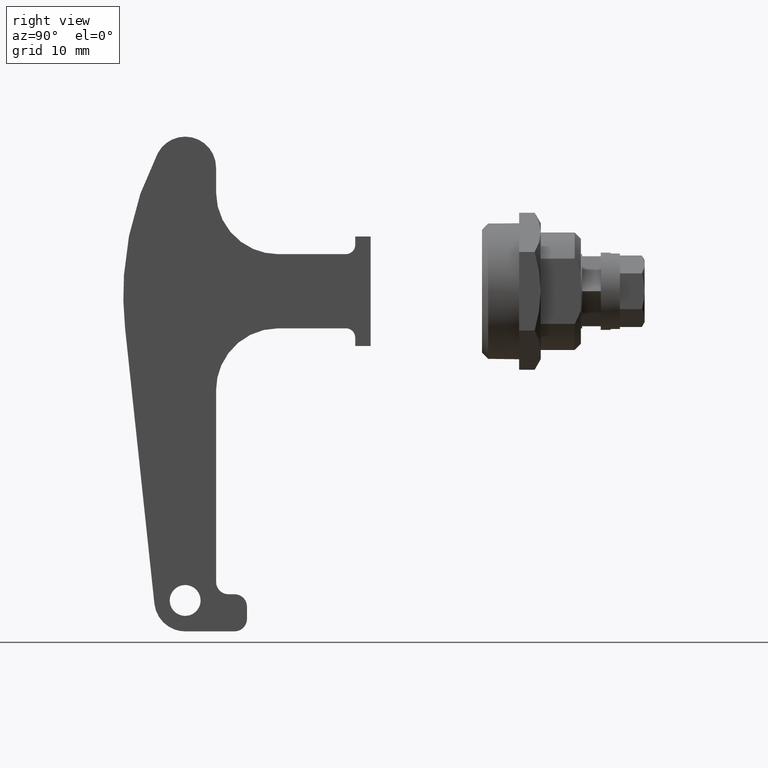
[diagram: clean part render]
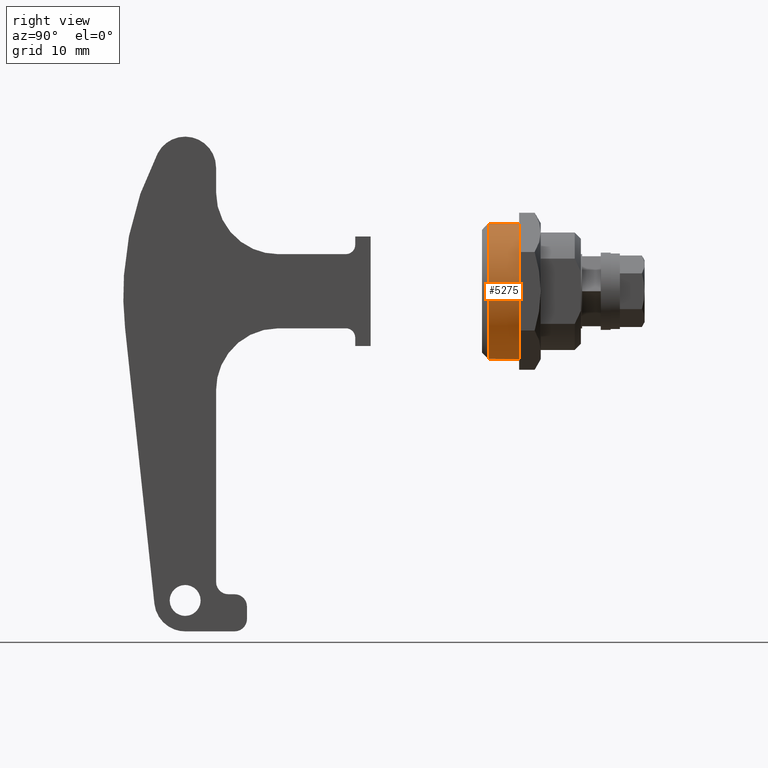
[diagram: same view with one face highlighted and labeled with its STEP entity id]
A machine part, right view. The second image highlights one B-rep face of the part: STEP entity #5275.
In plain terms, the highlighted face is a freeform B-spline surface patch.
Its self-contained STEP definition (entity closure, byte-faithful):
#5088=CARTESIAN_POINT('',(-8.050060152863390,0.125000000000000,-7.496434588207982));
#5089=CARTESIAN_POINT('',(-7.835515415635006,0.125000000000000,-7.726823851243171));
#5090=CARTESIAN_POINT('',(-7.608145358439399,0.125000000000000,-7.944565702721383));
#5091=CARTESIAN_POINT('',(0.336420344281985,0.125000000000000,-15.552711061160776));
#5092=CARTESIAN_POINT('',(7.944565702721384,0.125000000000000,-7.608145358439399));
#5093=CARTESIAN_POINT('',(15.552711061160789,0.125000000000000,0.336420344281985));
#5094=CARTESIAN_POINT('',(7.608145358439399,0.125000000000000,7.944565702721385));
#5095=CARTESIAN_POINT('',(-0.336420344281985,0.125000000000000,15.552711061160789));
#5096=CARTESIAN_POINT('',(-7.944565702721384,0.125000000000000,7.608145358439400));
#5097=CARTESIAN_POINT('',(-8.050060152863390,-5.128125000000010,-7.496434588207982));
#5098=CARTESIAN_POINT('',(-7.835515415635006,-5.128125000000009,-7.726823851243171));
#5099=CARTESIAN_POINT('',(-7.608145358439399,-5.128125000000009,-7.944565702721383));
#5100=CARTESIAN_POINT('',(0.336420344281985,-5.128125000000008,-15.552711061160776));
#5101=CARTESIAN_POINT('',(7.944565702721384,-5.128125000000009,-7.608145358439399));
#5102=CARTESIAN_POINT('',(15.552711061160789,-5.128125000000008,0.336420344281985));
#5103=CARTESIAN_POINT('',(7.608145358439399,-5.128125000000009,7.944565702721385));
#5104=CARTESIAN_POINT('',(-0.336420344281985,-5.128125000000008,15.552711061160789));
#5105=CARTESIAN_POINT('',(-7.944565702721384,-5.128125000000009,7.608145358439400));
#5113=(BOUNDED_SURFACE()B_SPLINE_SURFACE(2,1,((#5088,#5097),(#5089,#5098),(#5090,#5099),(#5091,#5100),(#5092,#5101),(#5093,#5102),(#5094,#5103),(#5095,#5104),(#5096,#5105)),.UNSPECIFIED.,.F.,.F.,.U.)B_SPLINE_SURFACE_WITH_KNOTS((3,2,2,2,3),(2,2),(0.0,0.729015869776648,18.954412614192819,37.179809358608992,55.405206103025172),(0.0,5.253125000000011),.UNSPECIFIED.)GEOMETRIC_REPRESENTATION_ITEM()RATIONAL_B_SPLINE_SURFACE(((0.977505800795127,0.977505800795127),(0.988284271247462,0.988284271247462),(1.0,1.0),(0.707106781186548,0.707106781186548),(1.0,1.0),(0.707106781186548,0.707106781186548),(1.0,1.0),(0.707106781186548,0.707106781186548),(1.0,1.0)))REPRESENTATION_ITEM('')SURFACE());
#5114=CARTESIAN_POINT('',(-8.050060190203183,-5.000000000022905,-7.496434548110553));
#5115=VERTEX_POINT('',#5114);
#5116=CARTESIAN_POINT('',(-1.099999999999910,-5.0,-10.944861808172719));
#5117=VERTEX_POINT('',#5116);
#5118=CARTESIAN_POINT('',(-8.050060190203183,-5.000000000022905,-7.496434548110553));
#5119=CARTESIAN_POINT('',(-7.431068792649693,-5.000000000020772,-8.161545459059530));
#5120=CARTESIAN_POINT('',(-6.441712919248031,-5.000000000017367,-8.989403467750481));
#5121=CARTESIAN_POINT('',(-4.757567595969736,-5.000000000011800,-9.959356095032685));
#5122=CARTESIAN_POINT('',(-3.141394728457838,-5.000000000006512,-10.608125318505151));
#5123=CARTESIAN_POINT('',(-1.798550086623624,-5.000000000002228,-10.874739209553541));
#5124=CARTESIAN_POINT('',(-1.099999999999910,-5.0,-10.944861808172719));
#5125=B_SPLINE_CURVE_WITH_KNOTS('',3,(#5118,#5119,#5120,#5121,#5122,#5123,#5124),.UNSPECIFIED.,.F.,.U.,(4,1,1,1,4),(0.000000050398091,2.725653716062167,3.840709097811026,5.822956633245214,7.929135200690999),.UNSPECIFIED.);
#5126=EDGE_CURVE('',#5115,#5117,#5125,.T.);
#5127=ORIENTED_EDGE('',*,*,#5126,.F.);
#5128=CARTESIAN_POINT('',(-8.050060710990881,-1.135771E-016,-7.496434914028669));
#5129=VERTEX_POINT('',#5128);
#5130=CARTESIAN_POINT('',(-8.050060710990881,-1.135771E-016,-7.496434914028669));
#5131=CARTESIAN_POINT('',(-8.050060190203183,-5.000000000022905,-7.496434548110553));
#5132=QUASI_UNIFORM_CURVE('',1,(#5130,#5131),.UNSPECIFIED.,.F.,.U.);
#5133=EDGE_CURVE('',#5129,#5115,#5132,.T.);
#5134=ORIENTED_EDGE('',*,*,#5133,.F.);
#5135=CARTESIAN_POINT('',(0.0,0.0,-11.0));
#5136=VERTEX_POINT('',#5135);
#5137=CARTESIAN_POINT('',(-8.050060710990881,-1.135771E-016,-7.496434914028669));
#5138=CARTESIAN_POINT('',(-7.217132751390635,-1.018255E-016,-8.392055392923817));
#5139=CARTESIAN_POINT('',(-5.664789285376281,-7.992368E-017,-9.580814811851642));
#5140=CARTESIAN_POINT('',(-2.868937220390182,-4.047742E-017,-10.734040182439919));
#5141=CARTESIAN_POINT('',(-1.081898195165848,-1.526434E-017,-11.000514299352311));
#5142=CARTESIAN_POINT('',(0.0,0.0,-11.0));
#5143=B_SPLINE_CURVE_WITH_KNOTS('',3,(#5137,#5138,#5139,#5140,#5141,#5142),.UNSPECIFIED.,.F.,.U.,(4,1,1,4),(0.000000074153428,3.668856991370187,5.785469227497000,9.030997189439178),.UNSPECIFIED.);
#5144=EDGE_CURVE('',#5129,#5136,#5143,.T.);
#5145=ORIENTED_EDGE('',*,*,#5144,.T.);
#5146=CARTESIAN_POINT('',(10.999999999999710,0.0,0.000002528387895));
#5147=VERTEX_POINT('',#5146);
#5148=CARTESIAN_POINT('',(0.0,0.0,-11.0));
#5149=CARTESIAN_POINT('',(0.719934548192658,0.0,-11.000076660029301));
#5150=CARTESIAN_POINT('',(2.204818686804422,0.0,-10.853761494314369));
#5151=CARTESIAN_POINT('',(4.192587145909348,0.0,-10.237442836888460));
#5152=CARTESIAN_POINT('',(5.989861772342139,0.0,-9.290810170775215));
#5153=CARTESIAN_POINT('',(7.743937777512471,0.0,-7.939504238255586));
#5154=CARTESIAN_POINT('',(9.309796292870567,0.0,-6.055160440763586));
#5155=CARTESIAN_POINT('',(10.640219894140049,0.0,-3.329192093082455));
#5156=CARTESIAN_POINT('',(11.000950133426359,0.0,-1.260051732180000));
#5157=CARTESIAN_POINT('',(10.999999999999710,0.0,0.000002528387895));
#5158=B_SPLINE_CURVE_WITH_KNOTS('',3,(#5148,#5149,#5150,#5151,#5152,#5153,#5154,#5155,#5156,#5157),.UNSPECIFIED.,.F.,.U.,(4,1,1,1,1,1,1,4),(0.000000259184517,2.159811374421086,4.454711537620927,6.209605637399960,8.234467055169128,11.069260910879979,13.499128418174431,17.278869436697779),.UNSPECIFIED.);
#5159=EDGE_CURVE('',#5136,#5147,#5158,.T.);
#5160=ORIENTED_EDGE('',*,*,#5159,.T.);
#5161=CARTESIAN_POINT('',(0.0,0.0,11.0));
#5162=VERTEX_POINT('',#5161);
#5163=CARTESIAN_POINT('',(10.999999999999710,0.0,0.000002528387895));
#5164=CARTESIAN_POINT('',(11.000074845109300,0.0,0.719939197845157));
#5165=CARTESIAN_POINT('',(10.862570917530100,0.0,2.114800007220882));
#5166=CARTESIAN_POINT('',(10.220113717569641,0.0,4.280968366204728));
#5167=CARTESIAN_POINT('',(9.248082060196683,0.0,6.072949218689391));
#5168=CARTESIAN_POINT('',(7.970111322412397,0.0,7.649546195058949));
#5169=CARTESIAN_POINT('',(6.455204941348013,0.0,9.005989990398792));
#5170=CARTESIAN_POINT('',(4.530487394014768,0.0,10.111982536879539));
#5171=CARTESIAN_POINT('',(2.294763774377204,0.0,10.835212227545670));
#5172=CARTESIAN_POINT('',(0.809951545803428,0.0,11.000157178500880));
#5173=CARTESIAN_POINT('',(0.0,0.0,11.0));
#5174=B_SPLINE_CURVE_WITH_KNOTS('',3,(#5163,#5164,#5165,#5166,#5167,#5168,#5169,#5170,#5171,#5172,#5173),.UNSPECIFIED.,.F.,.U.,(4,1,1,1,1,1,1,1,4),(0.000000260068781,2.159811018913025,4.184723795771559,6.749603125630459,8.234465693934018,10.259321473087139,12.824156464756911,14.849040918242700,17.278866586597459),.UNSPECIFIED.);
#5175=EDGE_CURVE('',#5147,#5162,#5174,.T.);
#5176=ORIENTED_EDGE('',*,*,#5175,.T.);
#5177=CARTESIAN_POINT('',(-7.944565387474027,-2.316203E-014,7.608144774583575));
#5178=VERTEX_POINT('',#5177);
#5179=CARTESIAN_POINT('',(0.0,0.0,11.0));
#5180=CARTESIAN_POINT('',(-0.693541616888369,-2.021990E-015,11.000082349232491));
#5181=CARTESIAN_POINT('',(-2.034341145841846,-5.931031E-015,10.872736873486080));
#5182=CARTESIAN_POINT('',(-4.221910656847058,-1.230879E-014,10.250107101612510));
#5183=CARTESIAN_POINT('',(-6.234816110916803,-1.817733E-014,9.171729592726814));
#5184=CARTESIAN_POINT('',(-7.464919070720003,-2.176364E-014,8.109067891738333));
#5185=CARTESIAN_POINT('',(-7.944565387474027,-2.316203E-014,7.608144774583575));
#5186=B_SPLINE_CURVE_WITH_KNOTS('',3,(#5179,#5180,#5181,#5182,#5183,#5184,#5185),.UNSPECIFIED.,.F.,.U.,(4,1,1,1,4),(0.000000068089639,2.080625042615310,4.022555657215897,6.796717235617294,8.877342210102857),.UNSPECIFIED.);
#5187=EDGE_CURVE('',#5162,#5178,#5186,.T.);
#5188=ORIENTED_EDGE('',*,*,#5187,.T.);
#5189=CARTESIAN_POINT('',(-7.944565840061696,-5.0,7.608145215026086));
#5190=VERTEX_POINT('',#5189);
#5191=CARTESIAN_POINT('',(-7.944565387474027,-2.316203E-014,7.608144774583575));
#5192=CARTESIAN_POINT('',(-7.944565840061696,-5.0,7.608145215026086));
#5193=QUASI_UNIFORM_CURVE('',1,(#5191,#5192),.UNSPECIFIED.,.F.,.U.);
#5194=EDGE_CURVE('',#5178,#5190,#5193,.T.);
#5195=ORIENTED_EDGE('',*,*,#5194,.T.);
#5196=CARTESIAN_POINT('',(-1.099999999999910,-5.0,10.944861808172719));
#5197=VERTEX_POINT('',#5196);
#5198=CARTESIAN_POINT('',(-1.099999999999910,-5.0,10.944861808172719));
#5199=CARTESIAN_POINT('',(-2.107426887225350,-5.000000000000009,10.843943508947840));
#5200=CARTESIAN_POINT('',(-3.934821338583551,-5.000000000000002,10.399644451103500));
#5201=CARTESIAN_POINT('',(-6.234297952739450,-4.999999999999965,9.166383386141787));
#5202=CARTESIAN_POINT('',(-7.440435218059621,-5.000000000000057,8.134664827109161));
#5203=CARTESIAN_POINT('',(-7.944565840061696,-5.0,7.608145215026086));
#5204=B_SPLINE_CURVE_WITH_KNOTS('',3,(#5198,#5199,#5200,#5201,#5202,#5203),.UNSPECIFIED.,.F.,.U.,(4,1,1,4),(0.000000051759327,3.037310110379995,5.588623260950040,7.775481534543575),.UNSPECIFIED.);
#5205=EDGE_CURVE('',#5197,#5190,#5204,.T.);
#5206=ORIENTED_EDGE('',*,*,#5205,.F.);
#5207=CARTESIAN_POINT('',(-1.099999999999910,-3.999999999999915,10.944861808172719));
#5208=VERTEX_POINT('',#5207);
#5209=CARTESIAN_POINT('',(-1.099999999999910,-3.999999999999915,10.944861808172719));
#5210=CARTESIAN_POINT('',(-1.099999999999910,-5.0,10.944861808172719));
#5211=QUASI_UNIFORM_CURVE('',1,(#5209,#5210),.UNSPECIFIED.,.F.,.U.);
#5212=EDGE_CURVE('',#5208,#5197,#5211,.T.);
#5213=ORIENTED_EDGE('',*,*,#5212,.F.);
#5214=CARTESIAN_POINT('',(1.100000000000000,-3.999999999999915,10.944861808172719));
#5215=VERTEX_POINT('',#5214);
#5216=CARTESIAN_POINT('',(-1.099999999999910,-3.999999999999915,10.944861808172719));
#5217=CARTESIAN_POINT('',(-0.369121966269146,-3.999999999999915,11.018367911123740));
#5218=CARTESIAN_POINT('',(0.369121535581575,-3.999999999999924,11.018390096392359));
#5219=CARTESIAN_POINT('',(1.100000000000000,-3.999999999999915,10.944861808172719));
#5220=B_SPLINE_CURVE_WITH_KNOTS('',3,(#5216,#5217,#5218,#5219),.UNSPECIFIED.,.F.,.U.,(4,4),(3.409543E-009,2.203697659571143),.UNSPECIFIED.);
#5221=EDGE_CURVE('',#5208,#5215,#5220,.T.);
#5222=ORIENTED_EDGE('',*,*,#5221,.T.);
#5223=CARTESIAN_POINT('',(1.100000000000000,-5.0,10.944861808172719));
#5224=VERTEX_POINT('',#5223);
#5225=CARTESIAN_POINT('',(1.100000000000000,-5.0,10.944861808172719));
#5226=CARTESIAN_POINT('',(1.100000000000000,-3.999999999999915,10.944861808172719));
#5227=QUASI_UNIFORM_CURVE('',1,(#5225,#5226),.UNSPECIFIED.,.F.,.U.);
#5228=EDGE_CURVE('',#5224,#5215,#5227,.T.);
#5229=ORIENTED_EDGE('',*,*,#5228,.F.);
#5230=CARTESIAN_POINT('',(1.100000000000000,-5.0,-10.944861808172719));
#5231=VERTEX_POINT('',#5230);
#5232=CARTESIAN_POINT('',(1.100000000000000,-5.0,-10.944861808172719));
#5233=CARTESIAN_POINT('',(2.189934315720233,-5.000000000000012,-10.835867561446170));
#5234=CARTESIAN_POINT('',(3.716961079374335,-4.999999999999987,-10.445849851332280));
#5235=CARTESIAN_POINT('',(5.757325573595781,-5.000000000000028,-9.429562101846372));
#5236=CARTESIAN_POINT('',(7.407603294144084,-4.999999999999964,-8.244308576007871));
#5237=CARTESIAN_POINT('',(9.057612838062193,-5.000000000000080,-6.420274964944008));
#5238=CARTESIAN_POINT('',(10.196336213692611,-4.999999999999862,-4.334500509331679));
#5239=CARTESIAN_POINT('',(10.929193134452589,-5.000000000000045,-1.905553294857052));
#5240=CARTESIAN_POINT('',(11.102101924896241,-5.000000000000125,0.597618185247888));
#5241=CARTESIAN_POINT('',(10.652231031243261,-4.999999999999762,3.015678777911879));
#5242=CARTESIAN_POINT('',(9.854385751679246,-5.000000000000322,5.018074031346344));
#5243=CARTESIAN_POINT('',(8.914224263067785,-5.000000000000149,6.526947740396976));
#5244=CARTESIAN_POINT('',(7.747684840072955,-4.999999999999611,7.862013216963977));
#5245=CARTESIAN_POINT('',(6.272322508902130,-5.000000000000276,9.128161785251018));
#5246=CARTESIAN_POINT('',(4.047756572051664,-4.999999999999908,10.366668291268409));
#5247=CARTESIAN_POINT('',(2.147991548004013,-5.000000000000053,10.839985610816409));
#5248=CARTESIAN_POINT('',(1.100000000000000,-5.0,10.944861808172719));
#5249=B_SPLINE_CURVE_WITH_KNOTS('',3,(#5232,#5233,#5234,#5235,#5236,#5237,#5238,#5239,#5240,#5241,#5242,#5243,#5244,#5245,#5246,#5247,#5248),.UNSPECIFIED.,.F.,.U.,(4,1,1,1,1,1,1,1,1,1,1,1,1,1,4),(0.000000659065734,3.285884356298386,4.676162978073453,6.824653964702627,9.352362492839532,12.006411256699000,13.902223222328130,16.935252659459611,19.462903761707778,21.232300009747568,23.380817663850170,24.771049667416829,26.540440937045350,29.194482993543382,32.354013866559427),.UNSPECIFIED.);
#5250=EDGE_CURVE('',#5231,#5224,#5249,.T.);
#5251=ORIENTED_EDGE('',*,*,#5250,.F.);
#5252=CARTESIAN_POINT('',(1.100000000000000,-3.999999999999915,-10.944861808172719));
#5253=VERTEX_POINT('',#5252);
#5254=CARTESIAN_POINT('',(1.100000000000000,-3.999999999999915,-10.944861808172719));
#5255=CARTESIAN_POINT('',(1.100000000000000,-5.0,-10.944861808172719));
#5256=QUASI_UNIFORM_CURVE('',1,(#5254,#5255),.UNSPECIFIED.,.F.,.U.);
#5257=EDGE_CURVE('',#5253,#5231,#5256,.T.);
#5258=ORIENTED_EDGE('',*,*,#5257,.F.);
#5259=CARTESIAN_POINT('',(-1.099999999999910,-3.999999999999915,-10.944861808172719));
#5260=VERTEX_POINT('',#5259);
#5261=CARTESIAN_POINT('',(1.100000000000000,-3.999999999999915,-10.944861808172719));
#5262=CARTESIAN_POINT('',(0.369122017025539,-3.999999999999912,-11.018367909891570));
#5263=CARTESIAN_POINT('',(-0.369121528105221,-3.999999999999919,-11.018390090998530));
#5264=CARTESIAN_POINT('',(-1.099999999999910,-3.999999999999915,-10.944861808172719));
#5265=B_SPLINE_CURVE_WITH_KNOTS('',3,(#5261,#5262,#5263,#5264),.UNSPECIFIED.,.F.,.U.,(4,4),(3.409549E-009,2.203697659571142),.UNSPECIFIED.);
#5266=EDGE_CURVE('',#5253,#5260,#5265,.T.);
#5267=ORIENTED_EDGE('',*,*,#5266,.T.);
#5268=CARTESIAN_POINT('',(-1.099999999999910,-5.0,-10.944861808172719));
#5269=CARTESIAN_POINT('',(-1.099999999999910,-3.999999999999915,-10.944861808172719));
#5270=QUASI_UNIFORM_CURVE('',1,(#5268,#5269),.UNSPECIFIED.,.F.,.U.);
#5271=EDGE_CURVE('',#5117,#5260,#5270,.T.);
#5272=ORIENTED_EDGE('',*,*,#5271,.F.);
#5273=EDGE_LOOP('',(#5127,#5134,#5145,#5160,#5176,#5188,#5195,#5206,#5213,#5222,#5229,#5251,#5258,#5267,#5272));
#5274=FACE_OUTER_BOUND('',#5273,.T.);
#5275=ADVANCED_FACE('',(#5274),#5113,.T.);